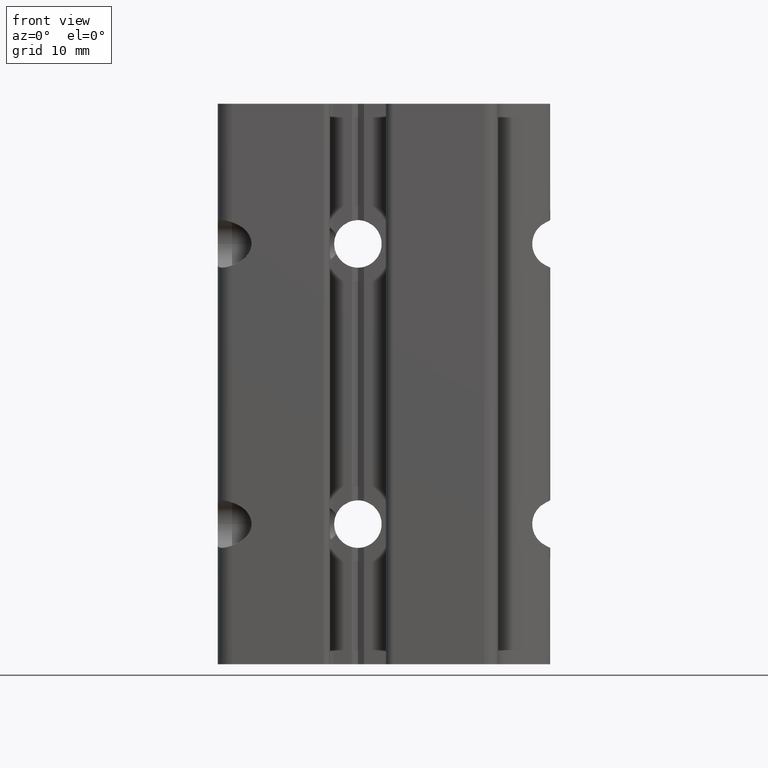
[diagram: clean part render]
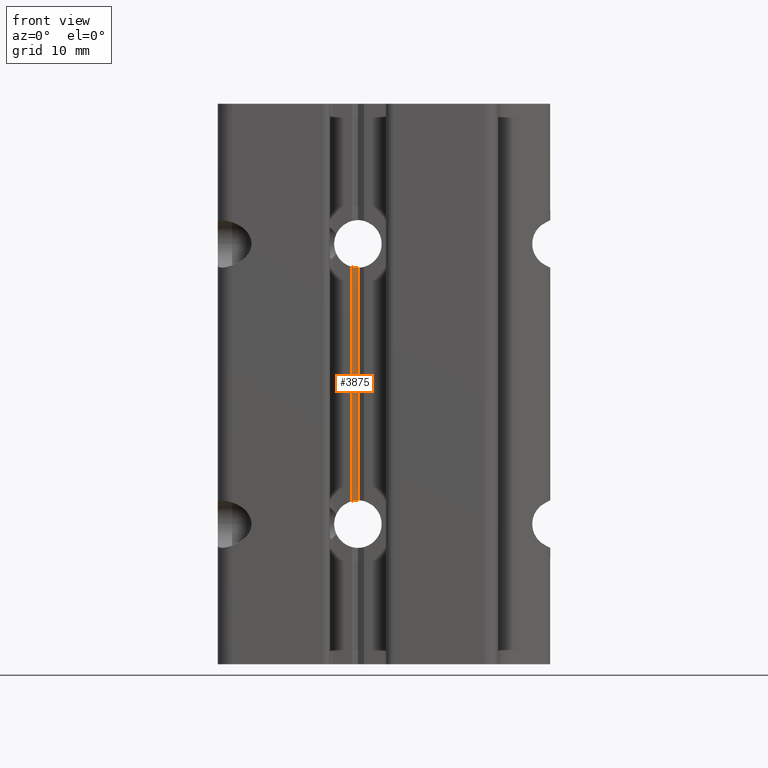
[diagram: same view with one face highlighted and labeled with its STEP entity id]
A machine part, front view. The second image highlights one B-rep face of the part: STEP entity #3875.
In plain terms, the highlighted planar face has unit normal (-0.5, 0.866, 0).
Its self-contained STEP definition (entity closure, byte-faithful):
#3775=CARTESIAN_POINT('',(-0.865997117744882,-7.499998334969860,23.287721549565475));
#3776=VERTEX_POINT('',#3775);
#3784=CARTESIAN_POINT('',(-0.865997117744882,-7.499998334969860,56.711993671806383));
#3785=VERTEX_POINT('',#3784);
#3786=CARTESIAN_POINT('',(-0.865997117744882,-7.499998334969860,56.711993671806383));
#3787=DIRECTION('',(0.0,0.0,-1.0));
#3788=VECTOR('',#3787,33.424272122240907);
#3789=LINE('',#3786,#3788);
#3790=EDGE_CURVE('',#3785,#3776,#3789,.T.);
#3843=CARTESIAN_POINT('',(-0.865997117744882,-7.499998334969860,79.999715220555601));
#3844=DIRECTION('',(-0.500000603527052,0.866025055337652,0.0));
#3845=DIRECTION('',(0.866025055337652,0.500000603527052,0.0));
#3846=AXIS2_PLACEMENT_3D('',#3843,#3844,#3845);
#3847=PLANE('',#3846);
#3848=ORIENTED_EDGE('',*,*,#3790,.T.);
#3849=CARTESIAN_POINT('',(0.000026699994123,-6.999998445971869,23.399864725951417));
#3850=VERTEX_POINT('',#3849);
#3851=CARTESIAN_POINT('',(0.000026699994123,-6.999998445971415,19.999865860765141));
#3852=DIRECTION('',(0.500000603527052,-0.866025055337652,0.0));
#3853=DIRECTION('',(0.866025055337652,0.500000603527052,0.0));
#3854=AXIS2_PLACEMENT_3D('',#3851,#3852,#3853);
#3855=ELLIPSE('',#3854,3.925982099745308,3.399998865186262);
#3856=EDGE_CURVE('',#3850,#3776,#3855,.T.);
#3857=ORIENTED_EDGE('',*,*,#3856,.F.);
#3858=CARTESIAN_POINT('',(0.000026699994123,-6.999998445971869,56.599850495420441));
#3859=VERTEX_POINT('',#3858);
#3860=CARTESIAN_POINT('',(0.000026699994123,-6.999998445971869,56.599850495420441));
#3861=DIRECTION('',(0.0,0.0,-1.0));
#3862=VECTOR('',#3861,33.199985769469016);
#3863=LINE('',#3860,#3862);
#3864=EDGE_CURVE('',#3859,#3850,#3863,.T.);
#3865=ORIENTED_EDGE('',*,*,#3864,.F.);
#3866=CARTESIAN_POINT('',(0.000026699994123,-6.999998445971415,59.999849360606703));
#3867=DIRECTION('',(0.500000603527052,-0.866025055337652,0.0));
#3868=DIRECTION('',(0.866025055337652,0.500000603527052,0.0));
#3869=AXIS2_PLACEMENT_3D('',#3866,#3867,#3868);
#3870=ELLIPSE('',#3869,3.925982099745308,3.399998865186262);
#3871=EDGE_CURVE('',#3785,#3859,#3870,.T.);
#3872=ORIENTED_EDGE('',*,*,#3871,.F.);
#3873=EDGE_LOOP('',(#3848,#3857,#3865,#3872));
#3874=FACE_OUTER_BOUND('',#3873,.T.);
#3875=ADVANCED_FACE('',(#3874),#3847,.F.);